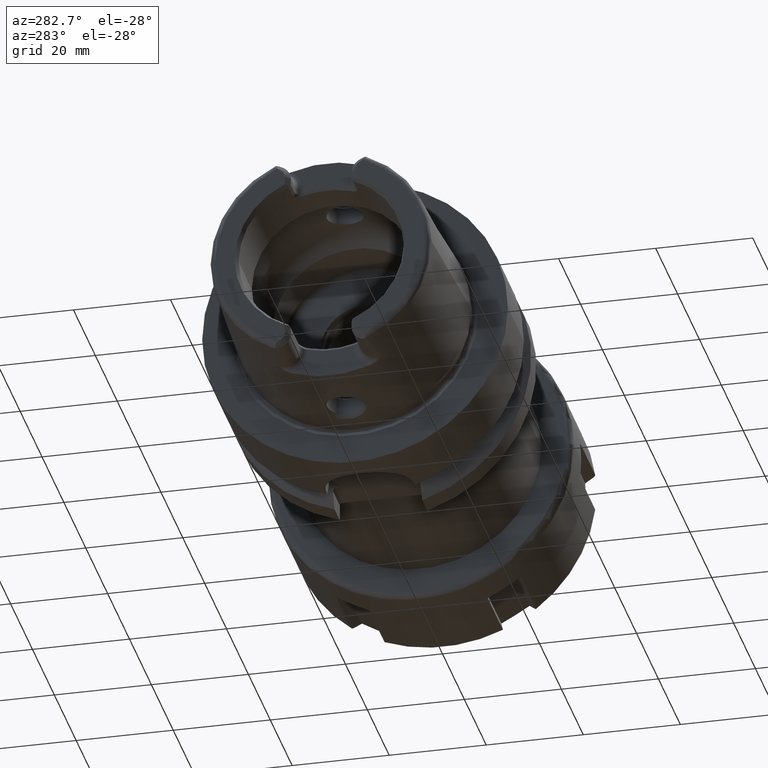
[diagram: clean part render]
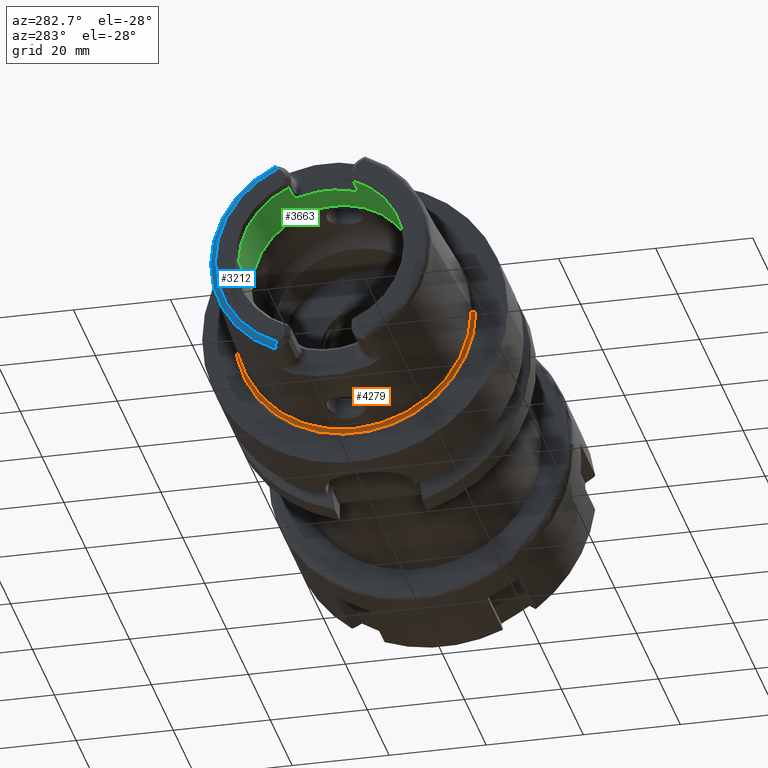
[diagram: same view with three faces highlighted in distinct colors, each labeled with its STEP entity id]
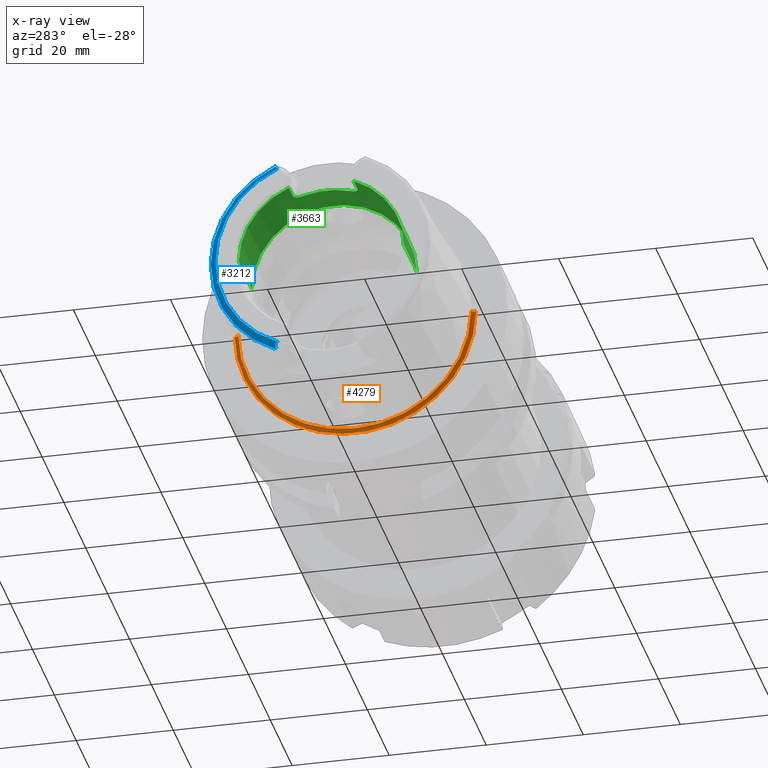
[diagram: x-ray of the same camera — body ghosted, the three highlighted faces saturated]
A machine part, auxiliary view with three faces highlighted in distinct colors.
The next image is the same camera in x-ray (body ghosted, the three faces saturated) — at least one of them is partly hidden behind the body in this view.
Their STEP definitions:

[orange] entity #4279 — the highlighted toroidal blend (fillet) surface has major radius 24.6204 mm and minor (blend) radius 0.6 mm.
#1030=CARTESIAN_POINT('',(-3.021696305237E-1,0.E0,0.E0));
#1031=DIRECTION('',(-1.E0,0.E0,0.E0));
#1032=DIRECTION('',(0.E0,1.E0,0.E0));
#1033=AXIS2_PLACEMENT_3D('',#1030,#1031,#1032);
#1045=CARTESIAN_POINT('',(-3.021696305237E-1,2.462042414966E1,0.E0));
#1046=DIRECTION('',(0.E0,0.E0,-1.E0));
#1047=DIRECTION('',(9.304175679820E-1,3.665012267243E-1,0.E0));
#1048=AXIS2_PLACEMENT_3D('',#1045,#1046,#1047);
#1050=CARTESIAN_POINT('',(-3.021696305237E-1,-2.462042414966E1,0.E0));
#1051=DIRECTION('',(0.E0,0.E0,1.E0));
#1052=DIRECTION('',(9.304175679820E-1,-3.665012267243E-1,0.E0));
#1053=AXIS2_PLACEMENT_3D('',#1050,#1051,#1052);
#1055=CARTESIAN_POINT('',(2.560809102655E-1,0.E0,0.E0));
#1056=DIRECTION('',(-1.E0,0.E0,0.E0));
#1057=DIRECTION('',(0.E0,1.E0,0.E0));
#1058=AXIS2_PLACEMENT_3D('',#1055,#1056,#1057);
#2596=CARTESIAN_POINT('',(2.560809102655E-1,-2.484032488569E1,0.E0));
#2597=CARTESIAN_POINT('',(-3.021696305237E-1,-2.402042414966E1,0.E0));
#2598=VERTEX_POINT('',#2596);
#2599=VERTEX_POINT('',#2597);
#2604=CARTESIAN_POINT('',(2.560809102655E-1,2.484032488569E1,0.E0));
#2605=CARTESIAN_POINT('',(-3.021696305237E-1,2.402042414966E1,0.E0));
#2606=VERTEX_POINT('',#2604);
#2607=VERTEX_POINT('',#2605);
#4267=CARTESIAN_POINT('',(-3.021696305237E-1,0.E0,0.E0));
#4268=DIRECTION('',(-1.E0,0.E0,0.E0));
#4269=DIRECTION('',(0.E0,-1.E0,0.E0));
#4270=AXIS2_PLACEMENT_3D('',#4267,#4268,#4269);
#4271=TOROIDAL_SURFACE('',#4270,2.462042414966E1,6.E-1);
#4272=ORIENTED_EDGE('',*,*,#4260,.T.);
#4273=ORIENTED_EDGE('',*,*,#4234,.T.);
#4274=ORIENTED_EDGE('',*,*,#4257,.F.);
#4276=ORIENTED_EDGE('',*,*,#4275,.F.);
#4277=EDGE_LOOP('',(#4272,#4273,#4274,#4276));
#4278=FACE_OUTER_BOUND('',#4277,.F.);
#4279=ADVANCED_FACE('',(#4278),#4271,.F.);
#1034=CIRCLE('',#1033,2.402042414966E1);
#1049=CIRCLE('',#1048,6.E-1);
#1054=CIRCLE('',#1053,6.E-1);
#1059=CIRCLE('',#1058,2.484032488569E1);
#4234=EDGE_CURVE('',#2607,#2599,#1034,.T.);
#4257=EDGE_CURVE('',#2598,#2599,#1054,.T.);
#4260=EDGE_CURVE('',#2606,#2607,#1049,.T.);
#4275=EDGE_CURVE('',#2606,#2598,#1059,.T.);

[blue] entity #3212 — the highlighted toroidal blend (fillet) surface has major radius 21.5761 mm and minor (blend) radius 1.2 mm.
#155=CARTESIAN_POINT('',(-3.142329832300E1,9.147789680232E0,-2.066750973939E1));
#156=CARTESIAN_POINT('',(-3.146785463680E1,9.169327161481E0,-2.062835928028E1));
#157=CARTESIAN_POINT('',(-3.155487993536E1,9.203474960428E0,-2.054672249220E1));
#158=CARTESIAN_POINT('',(-3.168154941819E1,9.224273580731E0,-2.040902349895E1));
#159=CARTESIAN_POINT('',(-3.179638971845E1,9.206079697358E0,-2.025999286960E1));
#160=CARTESIAN_POINT('',(-3.189041365611E1,9.144200972137E0,-2.010730009138E1));
#161=CARTESIAN_POINT('',(-3.195659880516E1,9.041253650427E0,-1.996104010677E1));
#162=CARTESIAN_POINT('',(-3.199307626724E1,8.906850532423E0,-1.982972129493E1));
#163=CARTESIAN_POINT('',(-3.2E1,8.806197293584E0,-1.975573388857E1));
#164=CARTESIAN_POINT('',(-3.2E1,8.752868121732E0,-1.972091419616E1));
#166=CARTESIAN_POINT('',(-3.132832518959E1,9.27E0,-2.067E1));
#167=CARTESIAN_POINT('',(-3.134450759901E1,9.250608646179E0,-2.067E1));
#168=CARTESIAN_POINT('',(-3.137648814066E1,9.210816796832E0,-2.066962390252E1));
#169=CARTESIAN_POINT('',(-3.140779600340E1,9.169107457374E0,-2.066837887831E1));
#170=CARTESIAN_POINT('',(-3.142329832300E1,9.147789680232E0,-2.066750973939E1));
#172=CARTESIAN_POINT('',(-3.086004306431E1,9.562027931336E0,-2.067E1));
#173=CARTESIAN_POINT('',(-3.089908117982E1,9.557369764332E0,-2.067E1));
#174=CARTESIAN_POINT('',(-3.097780815735E1,9.539070199208E0,-2.067E1));
#175=CARTESIAN_POINT('',(-3.110050491135E1,9.479694699778E0,-2.067E1));
#176=CARTESIAN_POINT('',(-3.121836320761E1,9.390392333018E0,-2.067E1));
#177=CARTESIAN_POINT('',(-3.129230837722E1,9.313158885277E0,-2.067E1));
#178=CARTESIAN_POINT('',(-3.132832518959E1,9.27E0,-2.067E1));
#180=CARTESIAN_POINT('',(-3.086004306431E1,0.E0,0.E0));
#181=DIRECTION('',(-1.E0,0.E0,0.E0));
#182=DIRECTION('',(0.E0,1.E0,0.E0));
#183=AXIS2_PLACEMENT_3D('',#180,#181,#182);
#185=CARTESIAN_POINT('',(-3.086004306431E1,0.E0,0.E0));
#186=DIRECTION('',(1.E0,0.E0,0.E0));
#187=DIRECTION('',(0.E0,1.E0,0.E0));
#188=AXIS2_PLACEMENT_3D('',#185,#186,#187);
#190=CARTESIAN_POINT('',(-3.132832518959E1,9.27E0,2.067E1));
#191=CARTESIAN_POINT('',(-3.129225458868E1,9.313223339992E0,2.067E1));
#192=CARTESIAN_POINT('',(-3.121820569130E1,9.390519030682E0,2.067E1));
#193=CARTESIAN_POINT('',(-3.110062643974E1,9.479612323317E0,2.067E1));
#194=CARTESIAN_POINT('',(-3.097775607391E1,9.539101836846E0,2.067E1));
#195=CARTESIAN_POINT('',(-3.089906305674E1,9.557371926843E0,2.067E1));
#196=CARTESIAN_POINT('',(-3.086004306431E1,9.562027931336E0,2.067E1));
#198=CARTESIAN_POINT('',(-3.142329832300E1,9.147789680232E0,2.066750973939E1));
#199=CARTESIAN_POINT('',(-3.140773724452E1,9.169188258734E0,2.066838217263E1));
#200=CARTESIAN_POINT('',(-3.137636553203E1,9.210974971125E0,2.066962696388E1));
#201=CARTESIAN_POINT('',(-3.134444355624E1,9.250685388521E0,2.067E1));
#202=CARTESIAN_POINT('',(-3.132832518959E1,9.27E0,2.067E1));
#204=CARTESIAN_POINT('',(-3.2E1,8.752868121732E0,1.972091419616E1));
#205=CARTESIAN_POINT('',(-3.2E1,8.806191392107E0,1.975573003538E1));
#206=CARTESIAN_POINT('',(-3.199307728065E1,8.906838058357E0,1.982971194007E1));
#207=CARTESIAN_POINT('',(-3.195660462370E1,9.041248816786E0,1.996103000182E1));
#208=CARTESIAN_POINT('',(-3.189040233195E1,9.144202826203E0,2.010731482616E1));
#209=CARTESIAN_POINT('',(-3.179646342749E1,9.206041881340E0,2.025988014952E1));
#210=CARTESIAN_POINT('',(-3.168160529070E1,9.224292971301E0,2.040896943202E1));
#211=CARTESIAN_POINT('',(-3.155472601909E1,9.203436757989E0,2.054688136818E1));
#212=CARTESIAN_POINT('',(-3.146778482605E1,9.169293416595E0,2.062842062115E1));
#213=CARTESIAN_POINT('',(-3.142329832300E1,9.147789680232E0,2.066750973939E1));
#215=CARTESIAN_POINT('',(-3.2E1,0.E0,0.E0));
#216=DIRECTION('',(-1.E0,0.E0,0.E0));
#217=DIRECTION('',(0.E0,4.056746540583E-1,9.140175463604E-1));
#218=AXIS2_PLACEMENT_3D('',#215,#216,#217);
#2616=CARTESIAN_POINT('',(-3.086004306431E1,2.277457525750E1,0.E0));
#2617=VERTEX_POINT('',#2616);
#2656=VERTEX_POINT('',#190);
#2657=VERTEX_POINT('',#196);
#2689=CARTESIAN_POINT('',(-3.2E1,8.752868121732E0,1.972091419616E1));
#2690=VERTEX_POINT('',#2689);
#2691=VERTEX_POINT('',#213);
#2737=VERTEX_POINT('',#172);
#2738=VERTEX_POINT('',#178);
#2785=CARTESIAN_POINT('',(-3.2E1,8.752868121732E0,-1.972091419616E1));
#2786=VERTEX_POINT('',#2785);
#2787=VERTEX_POINT('',#155);
#3188=CARTESIAN_POINT('',(-3.08E1,0.E0,0.E0));
#3189=DIRECTION('',(1.E0,0.E0,0.E0));
#3190=DIRECTION('',(0.E0,-1.E0,0.E0));
#3191=AXIS2_PLACEMENT_3D('',#3188,#3189,#3190);
#3192=TOROIDAL_SURFACE('',#3191,2.157607835286E1,1.2E0);
#3194=ORIENTED_EDGE('',*,*,#3193,.F.);
#3196=ORIENTED_EDGE('',*,*,#3195,.F.);
#3198=ORIENTED_EDGE('',*,*,#3197,.F.);
#3200=ORIENTED_EDGE('',*,*,#3199,.F.);
#3201=ORIENTED_EDGE('',*,*,#3079,.T.);
#3203=ORIENTED_EDGE('',*,*,#3202,.F.);
#3205=ORIENTED_EDGE('',*,*,#3204,.F.);
#3207=ORIENTED_EDGE('',*,*,#3206,.F.);
#3209=ORIENTED_EDGE('',*,*,#3208,.T.);
#3210=EDGE_LOOP('',(#3194,#3196,#3198,#3200,#3201,#3203,#3205,#3207,#3209));
#3211=FACE_OUTER_BOUND('',#3210,.F.);
#3212=ADVANCED_FACE('',(#3211),#3192,.T.);
#165=B_SPLINE_CURVE_WITH_KNOTS('',3,(#155,#156,#157,#158,#159,#160,#161,#162,
#163,#164),.UNSPECIFIED.,.F.,.F.,(4,1,1,1,1,1,1,4),(0.E0,1.428571428571E-1,
2.857142857143E-1,4.285714285714E-1,5.714285714286E-1,7.142857142857E-1,
8.571428571429E-1,1.E0),.UNSPECIFIED.);
#171=B_SPLINE_CURVE_WITH_KNOTS('',3,(#166,#167,#168,#169,#170),.UNSPECIFIED.,
.F.,.F.,(4,1,4),(0.E0,5.E-1,1.E0),.UNSPECIFIED.);
#179=B_SPLINE_CURVE_WITH_KNOTS('',3,(#172,#173,#174,#175,#176,#177,#178),
.UNSPECIFIED.,.F.,.F.,(4,1,1,1,4),(0.E0,2.5E-1,5.E-1,7.5E-1,1.E0),
.UNSPECIFIED.);
#184=CIRCLE('',#183,2.277457525750E1);
#189=CIRCLE('',#188,2.277457525750E1);
#197=B_SPLINE_CURVE_WITH_KNOTS('',3,(#190,#191,#192,#193,#194,#195,#196),
.UNSPECIFIED.,.F.,.F.,(4,1,1,1,4),(0.E0,2.5E-1,5.E-1,7.5E-1,1.E0),
.UNSPECIFIED.);
#203=B_SPLINE_CURVE_WITH_KNOTS('',3,(#198,#199,#200,#201,#202),.UNSPECIFIED.,
.F.,.F.,(4,1,4),(0.E0,5.E-1,1.E0),.UNSPECIFIED.);
#214=B_SPLINE_CURVE_WITH_KNOTS('',3,(#204,#205,#206,#207,#208,#209,#210,#211,
#212,#213),.UNSPECIFIED.,.F.,.F.,(4,1,1,1,1,1,1,4),(0.E0,1.428571428571E-1,
2.857142857143E-1,4.285714285714E-1,5.714285714286E-1,7.142857142857E-1,
8.571428571429E-1,1.E0),.UNSPECIFIED.);
#219=CIRCLE('',#218,2.157607835286E1);
#3079=EDGE_CURVE('',#2617,#2657,#189,.T.);
#3193=EDGE_CURVE('',#2787,#2786,#165,.T.);
#3195=EDGE_CURVE('',#2738,#2787,#171,.T.);
#3197=EDGE_CURVE('',#2737,#2738,#179,.T.);
#3199=EDGE_CURVE('',#2617,#2737,#184,.T.);
#3202=EDGE_CURVE('',#2656,#2657,#197,.T.);
#3204=EDGE_CURVE('',#2691,#2656,#203,.T.);
#3206=EDGE_CURVE('',#2690,#2691,#214,.T.);
#3208=EDGE_CURVE('',#2690,#2786,#219,.T.);

[green] entity #3663 — the highlighted cylindrical surface (partial cylindrical patch) has radius 17 mm, axis along (1, 0, 0).
#362=CARTESIAN_POINT('',(-3.1E1,0.E0,0.E0));
#363=DIRECTION('',(1.E0,0.E0,0.E0));
#364=DIRECTION('',(0.E0,1.E0,0.E0));
#365=AXIS2_PLACEMENT_3D('',#362,#363,#364);
#394=CARTESIAN_POINT('',(-3.1E1,0.E0,0.E0));
#395=DIRECTION('',(1.E0,0.E0,0.E0));
#396=DIRECTION('',(0.E0,-3.910839598454E-1,9.203550056102E-1));
#397=AXIS2_PLACEMENT_3D('',#394,#395,#396);
#559=DIRECTION('',(1.E0,0.E0,0.E0));
#560=VECTOR('',#559,3.5E0);
#561=CARTESIAN_POINT('',(-3.1E1,6.648427317371E0,1.564603509537E1));
#562=LINE('',#561,#560);
#563=CARTESIAN_POINT('',(-2.571132486541E1,4.77E0,1.631708000838E1));
#564=CARTESIAN_POINT('',(-2.570911463045E1,4.851899929325E0,1.629313806150E1));
#565=CARTESIAN_POINT('',(-2.571539985496E1,5.014300274441E0,1.624433189365E1));
#566=CARTESIAN_POINT('',(-2.575723226820E1,5.255574737127E0,1.616786516493E1));
#567=CARTESIAN_POINT('',(-2.583019759937E1,5.488813832187E0,1.609012650164E1));
#568=CARTESIAN_POINT('',(-2.593222755914E1,5.709311810621E0,1.601314455534E1));
#569=CARTESIAN_POINT('',(-2.606208908479E1,5.913640570765E0,1.593873381343E1));
#570=CARTESIAN_POINT('',(-2.621579663552E1,6.097621457296E0,1.586916363348E1));
#571=CARTESIAN_POINT('',(-2.639004084082E1,6.257927374534E0,1.580654307494E1));
#572=CARTESIAN_POINT('',(-2.658287946713E1,6.394281114327E0,1.575179653388E1));
#573=CARTESIAN_POINT('',(-2.679414325254E1,6.504885265694E0,1.570637036291E1));
#574=CARTESIAN_POINT('',(-2.702072491693E1,6.586740689310E0,1.567215753589E1));
#575=CARTESIAN_POINT('',(-2.725841410654E1,6.637201205541E0,1.565081274977E1));
#576=CARTESIAN_POINT('',(-2.741884128981E1,6.648427317371E0,1.564603509537E1));
#577=CARTESIAN_POINT('',(-2.75E1,6.648427317371E0,1.564603509537E1));
#579=CARTESIAN_POINT('',(-2.571132486541E1,-4.77E0,1.631708000838E1));
#580=CARTESIAN_POINT('',(-2.571132486541E1,-4.151241293882E0,1.649796280277E1));
#581=CARTESIAN_POINT('',(-2.571132889067E1,-2.893125957956E0,1.678926713017E1));
#582=CARTESIAN_POINT('',(-2.571132738120E1,-9.685489423330E-1,
1.700915920873E1));
#583=CARTESIAN_POINT('',(-2.571132738120E1,9.685489423332E-1,1.700915920873E1));
#584=CARTESIAN_POINT('',(-2.571132889067E1,2.893125957955E0,1.678926713017E1));
#585=CARTESIAN_POINT('',(-2.571132486541E1,4.151241293884E0,1.649796280277E1));
#586=CARTESIAN_POINT('',(-2.571132486541E1,4.77E0,1.631708000838E1));
#588=CARTESIAN_POINT('',(-2.75E1,-6.648427317371E0,1.564603509537E1));
#589=CARTESIAN_POINT('',(-2.741886739757E1,-6.648427317371E0,1.564603509537E1));
#590=CARTESIAN_POINT('',(-2.725846026145E1,-6.637216591931E0,1.565080624648E1));
#591=CARTESIAN_POINT('',(-2.702047669465E1,-6.586680175792E0,1.567218311946E1));
#592=CARTESIAN_POINT('',(-2.679396033382E1,-6.504789416100E0,1.570640995358E1));
#593=CARTESIAN_POINT('',(-2.658322850975E1,-6.394447887183E0,1.575172726773E1));
#594=CARTESIAN_POINT('',(-2.639118887217E1,-6.258799446744E0,1.580619508840E1));
#595=CARTESIAN_POINT('',(-2.621738949273E1,-6.099242016698E0,1.586853752436E1));
#596=CARTESIAN_POINT('',(-2.606384631874E1,-5.916012648986E0,1.593785105703E1));
#597=CARTESIAN_POINT('',(-2.593366664869E1,-5.711955003317E0,1.601220141386E1));
#598=CARTESIAN_POINT('',(-2.583107108488E1,-5.491206341112E0,1.608931480424E1));
#599=CARTESIAN_POINT('',(-2.575746962839E1,-5.256749499660E0,1.616748882623E1));
#600=CARTESIAN_POINT('',(-2.571543732099E1,-5.014873021211E0,1.624415783103E1));
#601=CARTESIAN_POINT('',(-2.570911008721E1,-4.852068278437E0,1.629308884771E1));
#602=CARTESIAN_POINT('',(-2.571132486541E1,-4.77E0,1.631708000838E1));
#604=DIRECTION('',(1.E0,0.E0,0.E0));
#605=VECTOR('',#604,3.5E0);
#606=CARTESIAN_POINT('',(-3.1E1,-6.648427317371E0,1.564603509537E1));
#607=LINE('',#606,#605);
#608=CARTESIAN_POINT('',(-1.899602540378E1,0.E0,0.E0));
#609=DIRECTION('',(1.E0,0.E0,0.E0));
#610=DIRECTION('',(0.E0,1.E0,0.E0));
#611=AXIS2_PLACEMENT_3D('',#608,#609,#610);
#666=DIRECTION('',(-1.E0,0.E0,0.E0));
#667=VECTOR('',#666,1.200397459622E1);
#668=CARTESIAN_POINT('',(-1.899602540378E1,1.7E1,0.E0));
#669=LINE('',#668,#667);
#675=DIRECTION('',(-1.E0,0.E0,0.E0));
#676=VECTOR('',#675,1.200397459622E1);
#677=CARTESIAN_POINT('',(-1.899602540378E1,-1.7E1,0.E0));
#678=LINE('',#677,#676);
#2640=CARTESIAN_POINT('',(-1.899602540378E1,1.7E1,0.E0));
#2641=VERTEX_POINT('',#2640);
#2642=CARTESIAN_POINT('',(-3.1E1,1.7E1,0.E0));
#2643=VERTEX_POINT('',#2642);
#2652=CARTESIAN_POINT('',(-1.899602540378E1,-1.7E1,0.E0));
#2653=VERTEX_POINT('',#2652);
#2654=CARTESIAN_POINT('',(-3.1E1,-1.7E1,0.E0));
#2655=VERTEX_POINT('',#2654);
#2721=CARTESIAN_POINT('',(-2.75E1,6.648427317371E0,1.564603509537E1));
#2722=VERTEX_POINT('',#2721);
#2723=CARTESIAN_POINT('',(-2.571132486541E1,4.77E0,1.631708000838E1));
#2724=VERTEX_POINT('',#2723);
#2725=CARTESIAN_POINT('',(-2.75E1,-6.648427317371E0,1.564603509537E1));
#2726=VERTEX_POINT('',#2725);
#2727=CARTESIAN_POINT('',(-2.571132486541E1,-4.77E0,1.631708000838E1));
#2728=VERTEX_POINT('',#2727);
#2733=CARTESIAN_POINT('',(-3.1E1,6.648427317371E0,1.564603509537E1));
#2734=VERTEX_POINT('',#2733);
#2735=CARTESIAN_POINT('',(-3.1E1,-6.648427317371E0,1.564603509537E1));
#2736=VERTEX_POINT('',#2735);
#3642=CARTESIAN_POINT('',(-3.41E1,0.E0,0.E0));
#3643=DIRECTION('',(1.E0,0.E0,0.E0));
#3644=DIRECTION('',(0.E0,-1.E0,0.E0));
#3645=AXIS2_PLACEMENT_3D('',#3642,#3643,#3644);
#3646=CYLINDRICAL_SURFACE('',#3645,1.7E1);
#3647=ORIENTED_EDGE('',*,*,#3379,.T.);
#3649=ORIENTED_EDGE('',*,*,#3648,.F.);
#3650=ORIENTED_EDGE('',*,*,#3527,.F.);
#3651=ORIENTED_EDGE('',*,*,#3582,.F.);
#3652=ORIENTED_EDGE('',*,*,#3597,.F.);
#3653=ORIENTED_EDGE('',*,*,#3344,.T.);
#3655=ORIENTED_EDGE('',*,*,#3654,.F.);
#3657=ORIENTED_EDGE('',*,*,#3656,.F.);
#3659=ORIENTED_EDGE('',*,*,#3658,.T.);
#3660=ORIENTED_EDGE('',*,*,#3324,.T.);
#3661=EDGE_LOOP('',(#3647,#3649,#3650,#3651,#3652,#3653,#3655,#3657,#3659,
#3660));
#3662=FACE_OUTER_BOUND('',#3661,.F.);
#3663=ADVANCED_FACE('',(#3662),#3646,.F.);
#366=CIRCLE('',#365,1.7E1);
#398=CIRCLE('',#397,1.7E1);
#578=B_SPLINE_CURVE_WITH_KNOTS('',3,(#563,#564,#565,#566,#567,#568,#569,#570,
#571,#572,#573,#574,#575,#576,#577),.UNSPECIFIED.,.F.,.F.,(4,1,1,1,1,1,1,1,1,1,
1,1,4),(0.E0,8.333333333333E-2,1.666666666667E-1,2.5E-1,3.333333333333E-1,
4.166666666667E-1,5.E-1,5.833333333333E-1,6.666666666667E-1,7.5E-1,
8.333333333333E-1,9.166666666667E-1,1.E0),.UNSPECIFIED.);
#587=B_SPLINE_CURVE_WITH_KNOTS('',3,(#579,#580,#581,#582,#583,#584,#585,#586),
.UNSPECIFIED.,.F.,.F.,(4,1,1,1,1,4),(0.E0,2.E-1,4.E-1,6.E-1,8.E-1,1.E0),
.UNSPECIFIED.);
#603=B_SPLINE_CURVE_WITH_KNOTS('',3,(#588,#589,#590,#591,#592,#593,#594,#595,
#596,#597,#598,#599,#600,#601,#602),.UNSPECIFIED.,.F.,.F.,(4,1,1,1,1,1,1,1,1,1,
1,1,4),(0.E0,8.333333333333E-2,1.666666666667E-1,2.5E-1,3.333333333333E-1,
4.166666666667E-1,5.E-1,5.833333333333E-1,6.666666666667E-1,7.5E-1,
8.333333333333E-1,9.166666666667E-1,1.E0),.UNSPECIFIED.);
#612=CIRCLE('',#611,1.7E1);
#3324=EDGE_CURVE('',#2643,#2734,#366,.T.);
#3344=EDGE_CURVE('',#2736,#2655,#398,.T.);
#3379=EDGE_CURVE('',#2734,#2722,#562,.T.);
#3527=EDGE_CURVE('',#2728,#2724,#587,.T.);
#3582=EDGE_CURVE('',#2726,#2728,#603,.T.);
#3597=EDGE_CURVE('',#2736,#2726,#607,.T.);
#3648=EDGE_CURVE('',#2724,#2722,#578,.T.);
#3654=EDGE_CURVE('',#2653,#2655,#678,.T.);
#3656=EDGE_CURVE('',#2641,#2653,#612,.T.);
#3658=EDGE_CURVE('',#2641,#2643,#669,.T.);